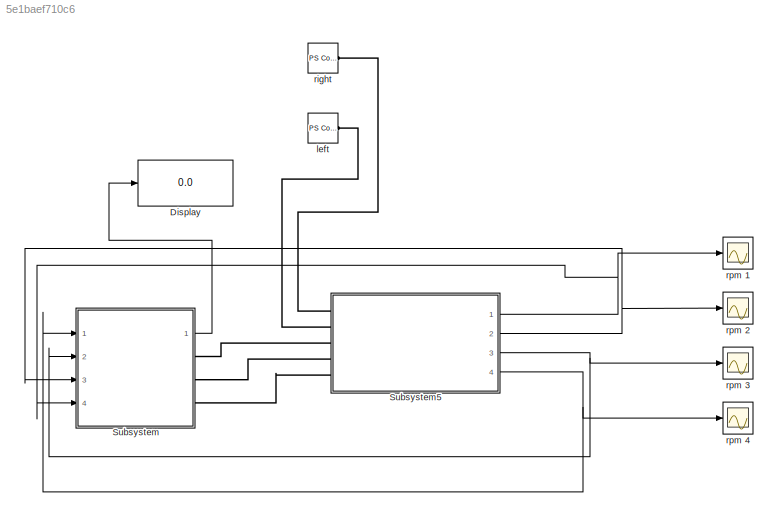
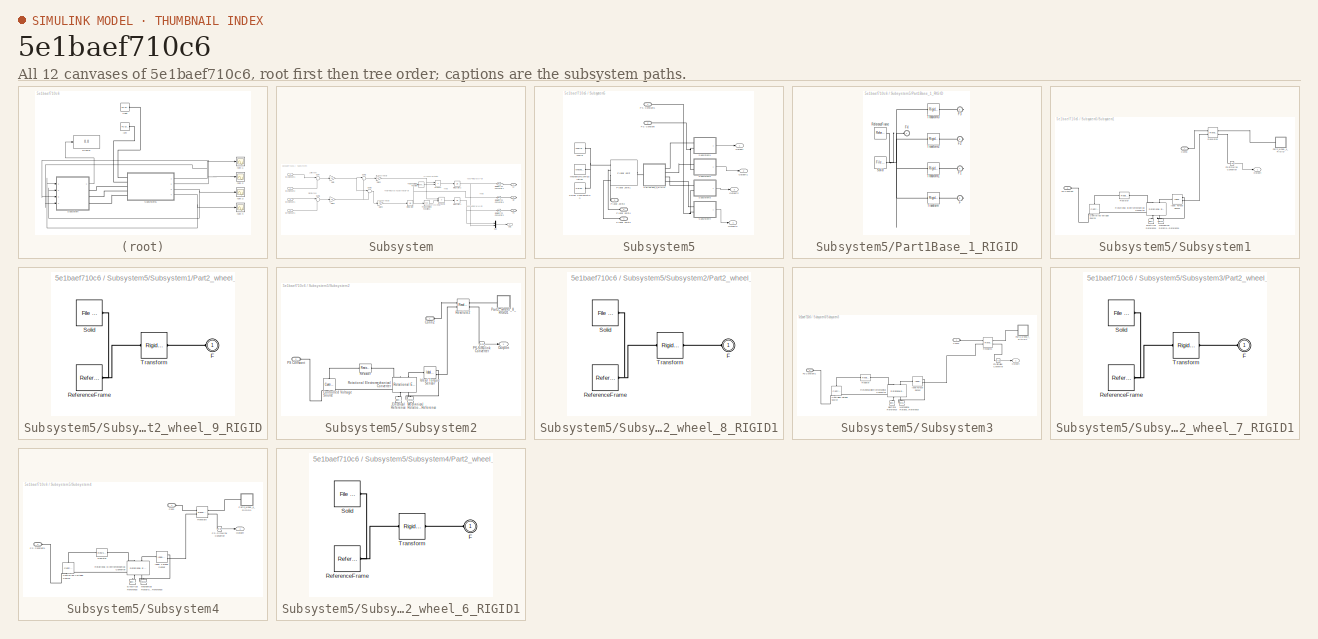
[diagram: thumbnail index - all 12 canvases of the model, root first then tree order]
MODEL slx_5e1baef710c6
KIND model
CONFIG AbsTol = auto
CONFIG EnableMultiTasking = off
CONFIG FixedStep = auto
CONFIG MaxStep = auto
CONFIG MinStep = auto
CONFIG RelTol = 1e-3
CONFIG SampleTimeConstraint = Unconstrained
CONFIG Solver = VariableStepAuto
CONFIG SolverName = VariableStepAuto
CONFIG StartTime = 0.0
CONFIG StopTime = 10.0
WORKSPACE source: external: MATLAB File  (data not in archive)
BLOCK [Display] Display
  Decimation = 1
  Ports = [1]
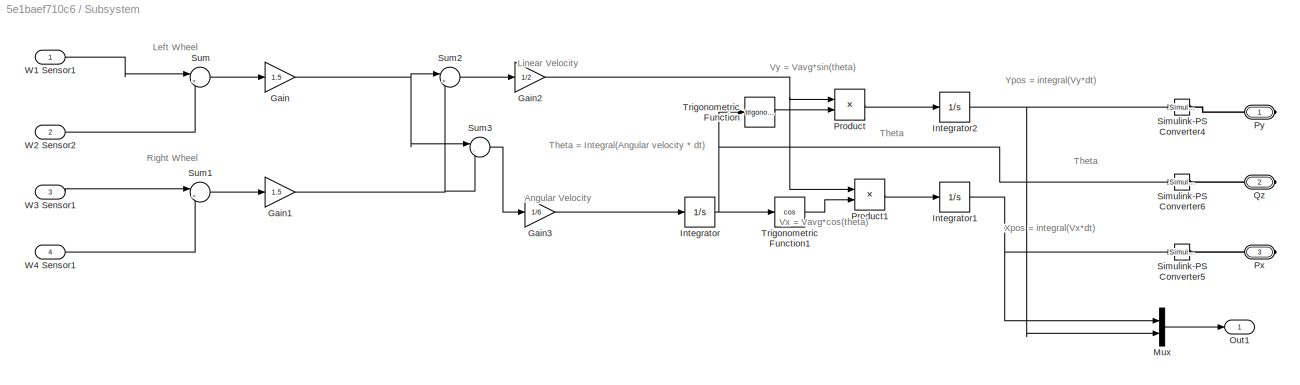
BLOCK [SubSystem] Subsystem
  Ports = [4, 1, 0, 0, 0, 0, 3]
  RequestExecContextInheritance = off
BLOCK [Gain] Subsystem/Gain
  Gain = 1.5
BLOCK [Gain] Subsystem/Gain1
  Gain = 1.5
BLOCK [Gain] Subsystem/Gain2
  Gain = 1/2
BLOCK [Gain] Subsystem/Gain3
  Gain = 1/6
BLOCK [Integrator] Subsystem/Integrator
  Ports = [1, 1]
BLOCK [Integrator] Subsystem/Integrator1
  Ports = [1, 1]
BLOCK [Integrator] Subsystem/Integrator2
  Ports = [1, 1]
BLOCK [Mux] Subsystem/Mux
  DisplayOption = bar
  Inputs = 2
  Ports = [2, 1]
BLOCK [Outport] Subsystem/Out1
BLOCK [Product] Subsystem/Product
  Ports = [2, 1]
BLOCK [Product] Subsystem/Product1
  Ports = [2, 1]
BLOCK [PMIOPort] Subsystem/Px
  Port = 3
  Side = Right
BLOCK [PMIOPort] Subsystem/Py
  Side = Right
BLOCK [PMIOPort] Subsystem/Qz
  Port = 2
  Side = Right
BLOCK [Reference] Subsystem/Simulink-PS Converter4  REF=nesl_utility/Simulink-PS
Converter
  Ports = [1, 0, 0, 0, 0, 0, 1]
  SourceBlock = nesl_utility/Simulink-PS\nConverter
  SourceProductBaseCode = SS
  SourceType = Simulink-PS\nConverter
BLOCK [Reference] Subsystem/Simulink-PS Converter5  REF=nesl_utility/Simulink-PS
Converter
  Ports = [1, 0, 0, 0, 0, 0, 1]
  SourceBlock = nesl_utility/Simulink-PS\nConverter
  SourceProductBaseCode = SS
  SourceType = Simulink-PS\nConverter
BLOCK [Reference] Subsystem/Simulink-PS Converter6  REF=nesl_utility/Simulink-PS
Converter
  Ports = [1, 0, 0, 0, 0, 0, 1]
  SourceBlock = nesl_utility/Simulink-PS\nConverter
  SourceProductBaseCode = SS
  SourceType = Simulink-PS\nConverter
BLOCK [Sum] Subsystem/Sum
  Inputs = |++
  Ports = [2, 1]
BLOCK [Sum] Subsystem/Sum1
  Inputs = |++
  Ports = [2, 1]
BLOCK [Sum] Subsystem/Sum2
  Inputs = |++
  Ports = [2, 1]
BLOCK [Sum] Subsystem/Sum3
  Inputs = |-+
  Ports = [2, 1]
BLOCK [Trigonometry] Subsystem/Trigonometric Function
  Ports = [1, 1]
BLOCK [Trigonometry] Subsystem/Trigonometric Function1
  Operator = cos
  Ports = [1, 1]
BLOCK [Inport] Subsystem/W1 Sensor1
BLOCK [Inport] Subsystem/W2 Sensor2
  Port = 2
BLOCK [Inport] Subsystem/W3 Sensor1
  Port = 3
BLOCK [Inport] Subsystem/W4 Sensor1
  Port = 4
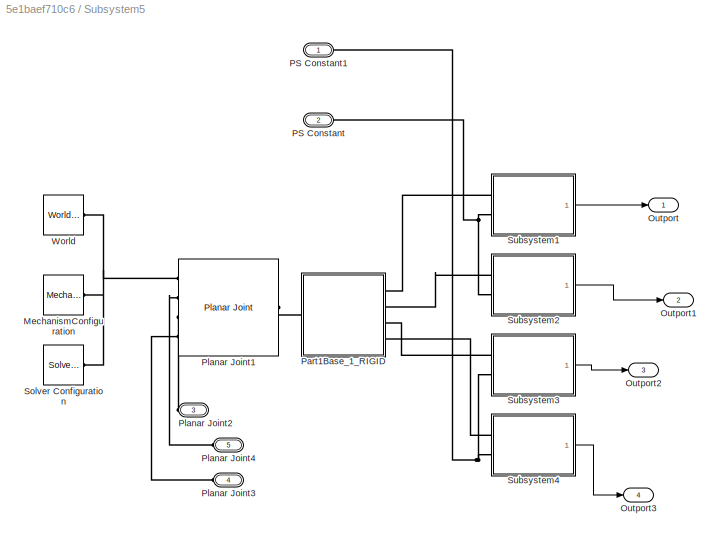
BLOCK [SubSystem] Subsystem5
  Ports = [0, 4, 0, 0, 0, 5]
  RequestExecContextInheritance = off
BLOCK [Reference] Subsystem5/MechanismConfiguration  REF=sm_lib/Utilities/Mechanism
Configuration
  Ports = [0, 0, 0, 0, 0, 0, 1]
  SourceBlock = sm_lib/Utilities/Mechanism\nConfiguration
  SourceProductBaseCode = MS
  SourceType = Mechanism\nConfiguration
BLOCK [Outport] Subsystem5/Outport
BLOCK [Outport] Subsystem5/Outport1
  Port = 2
BLOCK [Outport] Subsystem5/Outport2
  Port = 3
BLOCK [Outport] Subsystem5/Outport3
  Port = 4
BLOCK [PMIOPort] Subsystem5/PS Constant
  Port = 2
  Side = Left
BLOCK [PMIOPort] Subsystem5/PS Constant1
  Side = Left
BLOCK [SubSystem] Subsystem5/Part1Base_1_RIGID
  Ports = [0, 0, 0, 0, 0, 1, 4]
  RequestExecContextInheritance = off
BLOCK [PMIOPort] Subsystem5/Part1Base_1_RIGID/F
  Port = 5
  Side = Right
BLOCK [PMIOPort] Subsystem5/Part1Base_1_RIGID/F1
  Port = 4
  Side = Right
BLOCK [PMIOPort] Subsystem5/Part1Base_1_RIGID/F2
  Port = 3
  Side = Right
BLOCK [PMIOPort] Subsystem5/Part1Base_1_RIGID/F3
  Port = 2
  Side = Right
BLOCK [PMIOPort] Subsystem5/Part1Base_1_RIGID/F4
  Side = Left
BLOCK [Reference] Subsystem5/Part1Base_1_RIGID/ReferenceFrame  REF=sm_lib/Frames and
Transforms/Reference
Frame
  Ports = [0, 0, 0, 0, 0, 0, 1]
  SourceBlock = sm_lib/Frames and\nTransforms/Reference\nFrame
  SourceProductBaseCode = MS
  SourceType = Reference\nFrame
BLOCK [Reference] Subsystem5/Part1Base_1_RIGID/Solid  REF=sm_lib/Body Elements/File Solid
  Ports = [0, 0, 0, 0, 0, 0, 1]
  SourceBlock = sm_lib/Body Elements/File Solid
  SourceProductBaseCode = MS
  SourceType = File Solid
BLOCK [Reference] Subsystem5/Part1Base_1_RIGID/Transform  REF=sm_lib/Frames and
Transforms/Rigid
Transform
  Ports = [0, 0, 0, 0, 0, 1, 1]
  SourceBlock = sm_lib/Frames and\nTransforms/Rigid\nTransform
  SourceProductBaseCode = MS
  SourceType = Rigid\nTransform
BLOCK [Reference] Subsystem5/Part1Base_1_RIGID/Transform1  REF=sm_lib/Frames and
Transforms/Rigid
Transform
  Ports = [0, 0, 0, 0, 0, 1, 1]
  SourceBlock = sm_lib/Frames and\nTransforms/Rigid\nTransform
  SourceProductBaseCode = MS
  SourceType = Rigid\nTransform
BLOCK [Reference] Subsystem5/Part1Base_1_RIGID/Transform2  REF=sm_lib/Frames and
Transforms/Rigid
Transform
  Ports = [0, 0, 0, 0, 0, 1, 1]
  SourceBlock = sm_lib/Frames and\nTransforms/Rigid\nTransform
  SourceProductBaseCode = MS
  SourceType = Rigid\nTransform
BLOCK [Reference] Subsystem5/Part1Base_1_RIGID/Transform3  REF=sm_lib/Frames and
Transforms/Rigid
Transform
  Ports = [0, 0, 0, 0, 0, 1, 1]
  SourceBlock = sm_lib/Frames and\nTransforms/Rigid\nTransform
  SourceProductBaseCode = MS
  SourceType = Rigid\nTransform
BLOCK [Reference] Subsystem5/Planar Joint1  REF=sm_lib/Joints/Planar Joint
  Ports = [0, 0, 0, 0, 0, 4, 1]
  SourceBlock = sm_lib/Joints/Planar Joint
  SourceProductBaseCode = MS
  SourceType = Planar Joint
BLOCK [PMIOPort] Subsystem5/Planar Joint2
  Port = 3
  Side = Left
BLOCK [PMIOPort] Subsystem5/Planar Joint3
  Port = 4
  Side = Left
BLOCK [PMIOPort] Subsystem5/Planar Joint4
  Port = 5
  Side = Left
BLOCK [Reference] Subsystem5/Solver Configuration  REF=nesl_utility/Solver
Configuration
  Ports = [0, 0, 0, 0, 0, 0, 1]
  SourceBlock = nesl_utility/Solver\nConfiguration
  SourceProductBaseCode = SS
  SourceType = Solver\nConfiguration
BLOCK [SubSystem] Subsystem5/Subsystem1
  Ports = [0, 1, 0, 0, 0, 2]
  RequestExecContextInheritance = off
BLOCK [PMIOPort] Subsystem5/Subsystem1/Conn3
  Side = Left
BLOCK [Reference] Subsystem5/Subsystem1/Controlled Voltage Source  REF=fl_lib/Electrical/Electrical Sources/Controlled Voltage
Source
  NameLocation = right
  Ports = [0, 0, 0, 0, 0, 1, 2]
  SourceBlock = fl_lib/Electrical/Electrical Sources/Controlled Voltage\nSource
  SourceProductBaseCode = SS
  SourceType = Controlled Voltage\nSource
BLOCK [Reference] Subsystem5/Subsystem1/Electrical Reference  REF=fl_lib/Electrical/Electrical Elements/Electrical Reference
  NameLocation = right
  Ports = [0, 0, 0, 0, 0, 1]
  SourceBlock = fl_lib/Electrical/Electrical Elements/Electrical Reference
  SourceProductBaseCode = SS
  SourceType = Electrical Reference
BLOCK [Reference] Subsystem5/Subsystem1/Ideal Torque Sensor  REF=fl_lib/Mechanical/Mechanical Sensors/Ideal Torque Sensor
  Ports = [0, 0, 0, 0, 0, 1, 2]
  SourceBlock = fl_lib/Mechanical/Mechanical Sensors/Ideal Torque Sensor
  SourceProductBaseCode = SS
  SourceType = Ideal Torque Sensor
BLOCK [Reference] Subsystem5/Subsystem1/Mechanical Rotational Reference  REF=fl_lib/Mechanical/Rotational Elements/Mechanical
Rotational Reference
  NameLocation = right
  Ports = [0, 0, 0, 0, 0, 1]
  SourceBlock = fl_lib/Mechanical/Rotational Elements/Mechanical\nRotational Reference
  SourceProductBaseCode = SS
  SourceType = Mechanical\nRotational Reference
BLOCK [Outport] Subsystem5/Subsystem1/Outport
BLOCK [PMIOPort] Subsystem5/Subsystem1/PS Constant
  Port = 2
  Side = Left
BLOCK [Reference] Subsystem5/Subsystem1/PS-Simulink Converter  REF=nesl_utility/PS-Simulink
Converter
  Ports = [0, 1, 0, 0, 0, 1]
  SourceBlock = nesl_utility/PS-Simulink\nConverter
  SourceProductBaseCode = SS
  SourceType = PS-Simulink\nConverter
BLOCK [SubSystem] Subsystem5/Subsystem1/Part2_wheel_9_RIGID
  Ports = [0, 0, 0, 0, 0, 1]
  RequestExecContextInheritance = off
BLOCK [PMIOPort] Subsystem5/Subsystem1/Part2_wheel_9_RIGID/F
  Side = Left
BLOCK [Reference] Subsystem5/Subsystem1/Part2_wheel_9_RIGID/ReferenceFrame  REF=sm_lib/Frames and
Transforms/Reference
Frame
  Ports = [0, 0, 0, 0, 0, 0, 1]
  SourceBlock = sm_lib/Frames and\nTransforms/Reference\nFrame
  SourceProductBaseCode = MS
  SourceType = Reference\nFrame
BLOCK [Reference] Subsystem5/Subsystem1/Part2_wheel_9_RIGID/Solid  REF=sm_lib/Body Elements/File Solid
  Ports = [0, 0, 0, 0, 0, 0, 1]
  SourceBlock = sm_lib/Body Elements/File Solid
  SourceProductBaseCode = MS
  SourceType = File Solid
BLOCK [Reference] Subsystem5/Subsystem1/Part2_wheel_9_RIGID/Transform  REF=sm_lib/Frames and
Transforms/Rigid
Transform
  Ports = [0, 0, 0, 0, 0, 1, 1]
  SourceBlock = sm_lib/Frames and\nTransforms/Rigid\nTransform
  SourceProductBaseCode = MS
  SourceType = Rigid\nTransform
BLOCK [Reference] Subsystem5/Subsystem1/Resistor  REF=fl_lib/Electrical/Electrical Elements/Resistor
  Ports = [0, 0, 0, 0, 0, 1, 1]
  SourceBlock = fl_lib/Electrical/Electrical Elements/Resistor
  SourceProductBaseCode = SS
  SourceType = Resistor
BLOCK [Reference] Subsystem5/Subsystem1/Revolute3  REF=sm_lib/Joints/Revolute Joint
  Ports = [0, 0, 0, 0, 0, 2, 2]
  SourceBlock = sm_lib/Joints/Revolute Joint
  SourceProductBaseCode = MS
  SourceType = Revolute Joint
BLOCK [Reference] Subsystem5/Subsystem1/Rotational Electromechanical Converter  REF=fl_lib/Electrical/Electrical Elements/Rotational
Electromechanical
Converter
  NameLocation = right
  Ports = [0, 0, 0, 0, 0, 2, 2]
  SourceBlock = fl_lib/Electrical/Electrical Elements/Rotational\nElectromechanical\nConverter
  SourceProductBaseCode = SS
  SourceType = Rotational\nElectromechanical\nConverter
BLOCK [SubSystem] Subsystem5/Subsystem2
  Ports = [0, 1, 0, 0, 0, 2]
  RequestExecContextInheritance = off
BLOCK [PMIOPort] Subsystem5/Subsystem2/Conn2
  Side = Left
BLOCK [Reference] Subsystem5/Subsystem2/Controlled Voltage Source  REF=fl_lib/Electrical/Electrical Sources/Controlled Voltage
Source
  NameLocation = right
  Ports = [0, 0, 0, 0, 0, 1, 2]
  SourceBlock = fl_lib/Electrical/Electrical Sources/Controlled Voltage\nSource
  SourceProductBaseCode = SS
  SourceType = Controlled Voltage\nSource
BLOCK [Reference] Subsystem5/Subsystem2/Electrical Reference  REF=fl_lib/Electrical/Electrical Elements/Electrical Reference
  NameLocation = right
  Ports = [0, 0, 0, 0, 0, 1]
  SourceBlock = fl_lib/Electrical/Electrical Elements/Electrical Reference
  SourceProductBaseCode = SS
  SourceType = Electrical Reference
BLOCK [Reference] Subsystem5/Subsystem2/Ideal Torque Sensor  REF=fl_lib/Mechanical/Mechanical Sensors/Ideal Torque Sensor
  Ports = [0, 0, 0, 0, 0, 1, 2]
  SourceBlock = fl_lib/Mechanical/Mechanical Sensors/Ideal Torque Sensor
  SourceProductBaseCode = SS
  SourceType = Ideal Torque Sensor
BLOCK [Reference] Subsystem5/Subsystem2/Mechanical Rotational Reference  REF=fl_lib/Mechanical/Rotational Elements/Mechanical
Rotational Reference
  NameLocation = right
  Ports = [0, 0, 0, 0, 0, 1]
  SourceBlock = fl_lib/Mechanical/Rotational Elements/Mechanical\nRotational Reference
  SourceProductBaseCode = SS
  SourceType = Mechanical\nRotational Reference
BLOCK [Outport] Subsystem5/Subsystem2/Outport
BLOCK [PMIOPort] Subsystem5/Subsystem2/PS Constant
  Port = 2
  Side = Left
BLOCK [Reference] Subsystem5/Subsystem2/PS-Simulink Converter  REF=nesl_utility/PS-Simulink
Converter
  Ports = [0, 1, 0, 0, 0, 1]
  SourceBlock = nesl_utility/PS-Simulink\nConverter
  SourceProductBaseCode = SS
  SourceType = PS-Simulink\nConverter
BLOCK [SubSystem] Subsystem5/Subsystem2/Part2_wheel_8_RIGID1
  Ports = [0, 0, 0, 0, 0, 1]
  RequestExecContextInheritance = off
BLOCK [PMIOPort] Subsystem5/Subsystem2/Part2_wheel_8_RIGID1/F
  Side = Left
BLOCK [Reference] Subsystem5/Subsystem2/Part2_wheel_8_RIGID1/ReferenceFrame  REF=sm_lib/Frames and
Transforms/Reference
Frame
  Ports = [0, 0, 0, 0, 0, 0, 1]
  SourceBlock = sm_lib/Frames and\nTransforms/Reference\nFrame
  SourceProductBaseCode = MS
  SourceType = Reference\nFrame
BLOCK [Reference] Subsystem5/Subsystem2/Part2_wheel_8_RIGID1/Solid  REF=sm_lib/Body Elements/File Solid
  Ports = [0, 0, 0, 0, 0, 0, 1]
  SourceBlock = sm_lib/Body Elements/File Solid
  SourceProductBaseCode = MS
  SourceType = File Solid
BLOCK [Reference] Subsystem5/Subsystem2/Part2_wheel_8_RIGID1/Transform  REF=sm_lib/Frames and
Transforms/Rigid
Transform
  Ports = [0, 0, 0, 0, 0, 1, 1]
  SourceBlock = sm_lib/Frames and\nTransforms/Rigid\nTransform
  SourceProductBaseCode = MS
  SourceType = Rigid\nTransform
BLOCK [Reference] Subsystem5/Subsystem2/Resistor  REF=fl_lib/Electrical/Electrical Elements/Resistor
  Ports = [0, 0, 0, 0, 0, 1, 1]
  SourceBlock = fl_lib/Electrical/Electrical Elements/Resistor
  SourceProductBaseCode = SS
  SourceType = Resistor
BLOCK [Reference] Subsystem5/Subsystem2/Revolute2  REF=sm_lib/Joints/Revolute Joint
  Ports = [0, 0, 0, 0, 0, 2, 2]
  SourceBlock = sm_lib/Joints/Revolute Joint
  SourceProductBaseCode = MS
  SourceType = Revolute Joint
BLOCK [Reference] Subsystem5/Subsystem2/Rotational Electromechanical Converter  REF=fl_lib/Electrical/Electrical Elements/Rotational
Electromechanical
Converter
  NameLocation = right
  Ports = [0, 0, 0, 0, 0, 2, 2]
  SourceBlock = fl_lib/Electrical/Electrical Elements/Rotational\nElectromechanical\nConverter
  SourceProductBaseCode = SS
  SourceType = Rotational\nElectromechanical\nConverter
BLOCK [SubSystem] Subsystem5/Subsystem3
  Ports = [0, 1, 0, 0, 0, 2]
  RequestExecContextInheritance = off
BLOCK [PMIOPort] Subsystem5/Subsystem3/Conn1
  Side = Left
BLOCK [Reference] Subsystem5/Subsystem3/Controlled Voltage Source  REF=fl_lib/Electrical/Electrical Sources/Controlled Voltage
Source
  NameLocation = right
  Ports = [0, 0, 0, 0, 0, 1, 2]
  SourceBlock = fl_lib/Electrical/Electrical Sources/Controlled Voltage\nSource
  SourceProductBaseCode = SS
  SourceType = Controlled Voltage\nSource
BLOCK [Reference] Subsystem5/Subsystem3/Electrical Reference  REF=fl_lib/Electrical/Electrical Elements/Electrical Reference
  NameLocation = right
  Ports = [0, 0, 0, 0, 0, 1]
  SourceBlock = fl_lib/Electrical/Electrical Elements/Electrical Reference
  SourceProductBaseCode = SS
  SourceType = Electrical Reference
BLOCK [Reference] Subsystem5/Subsystem3/Ideal Torque Sensor  REF=fl_lib/Mechanical/Mechanical Sensors/Ideal Torque Sensor
  Ports = [0, 0, 0, 0, 0, 1, 2]
  SourceBlock = fl_lib/Mechanical/Mechanical Sensors/Ideal Torque Sensor
  SourceProductBaseCode = SS
  SourceType = Ideal Torque Sensor
BLOCK [Reference] Subsystem5/Subsystem3/Mechanical Rotational Reference  REF=fl_lib/Mechanical/Rotational Elements/Mechanical
Rotational Reference
  NameLocation = right
  Ports = [0, 0, 0, 0, 0, 1]
  SourceBlock = fl_lib/Mechanical/Rotational Elements/Mechanical\nRotational Reference
  SourceProductBaseCode = SS
  SourceType = Mechanical\nRotational Reference
BLOCK [Outport] Subsystem5/Subsystem3/Outport
BLOCK [PMIOPort] Subsystem5/Subsystem3/PS Constant1
  Port = 2
  Side = Left
BLOCK [Reference] Subsystem5/Subsystem3/PS-Simulink Converter  REF=nesl_utility/PS-Simulink
Converter
  Ports = [0, 1, 0, 0, 0, 1]
  SourceBlock = nesl_utility/PS-Simulink\nConverter
  SourceProductBaseCode = SS
  SourceType = PS-Simulink\nConverter
BLOCK [SubSystem] Subsystem5/Subsystem3/Part2_wheel_7_RIGID1
  Ports = [0, 0, 0, 0, 0, 1]
  RequestExecContextInheritance = off
BLOCK [PMIOPort] Subsystem5/Subsystem3/Part2_wheel_7_RIGID1/F
  Side = Left
BLOCK [Reference] Subsystem5/Subsystem3/Part2_wheel_7_RIGID1/ReferenceFrame  REF=sm_lib/Frames and
Transforms/Reference
Frame
  Ports = [0, 0, 0, 0, 0, 0, 1]
  SourceBlock = sm_lib/Frames and\nTransforms/Reference\nFrame
  SourceProductBaseCode = MS
  SourceType = Reference\nFrame
BLOCK [Reference] Subsystem5/Subsystem3/Part2_wheel_7_RIGID1/Solid  REF=sm_lib/Body Elements/File Solid
  Ports = [0, 0, 0, 0, 0, 0, 1]
  SourceBlock = sm_lib/Body Elements/File Solid
  SourceProductBaseCode = MS
  SourceType = File Solid
BLOCK [Reference] Subsystem5/Subsystem3/Part2_wheel_7_RIGID1/Transform  REF=sm_lib/Frames and
Transforms/Rigid
Transform
  Ports = [0, 0, 0, 0, 0, 1, 1]
  SourceBlock = sm_lib/Frames and\nTransforms/Rigid\nTransform
  SourceProductBaseCode = MS
  SourceType = Rigid\nTransform
BLOCK [Reference] Subsystem5/Subsystem3/Resistor  REF=fl_lib/Electrical/Electrical Elements/Resistor
  Ports = [0, 0, 0, 0, 0, 1, 1]
  SourceBlock = fl_lib/Electrical/Electrical Elements/Resistor
  SourceProductBaseCode = SS
  SourceType = Resistor
BLOCK [Reference] Subsystem5/Subsystem3/Revolute1  REF=sm_lib/Joints/Revolute Joint
  Ports = [0, 0, 0, 0, 0, 2, 2]
  SourceBlock = sm_lib/Joints/Revolute Joint
  SourceProductBaseCode = MS
  SourceType = Revolute Joint
BLOCK [Reference] Subsystem5/Subsystem3/Rotational Electromechanical Converter  REF=fl_lib/Electrical/Electrical Elements/Rotational
Electromechanical
Converter
  NameLocation = right
  Ports = [0, 0, 0, 0, 0, 2, 2]
  SourceBlock = fl_lib/Electrical/Electrical Elements/Rotational\nElectromechanical\nConverter
  SourceProductBaseCode = SS
  SourceType = Rotational\nElectromechanical\nConverter
BLOCK [SubSystem] Subsystem5/Subsystem4
  Ports = [0, 1, 0, 0, 0, 2]
  RequestExecContextInheritance = off
BLOCK [PMIOPort] Subsystem5/Subsystem4/Conn
  Side = Left
BLOCK [Reference] Subsystem5/Subsystem4/Controlled Voltage Source  REF=fl_lib/Electrical/Electrical Sources/Controlled Voltage
Source
  NameLocation = right
  Ports = [0, 0, 0, 0, 0, 1, 2]
  SourceBlock = fl_lib/Electrical/Electrical Sources/Controlled Voltage\nSource
  SourceProductBaseCode = SS
  SourceType = Controlled Voltage\nSource
BLOCK [Reference] Subsystem5/Subsystem4/Electrical Reference  REF=fl_lib/Electrical/Electrical Elements/Electrical Reference
  NameLocation = right
  Ports = [0, 0, 0, 0, 0, 1]
  SourceBlock = fl_lib/Electrical/Electrical Elements/Electrical Reference
  SourceProductBaseCode = SS
  SourceType = Electrical Reference
BLOCK [Reference] Subsystem5/Subsystem4/Ideal Torque Sensor  REF=fl_lib/Mechanical/Mechanical Sensors/Ideal Torque Sensor
  Ports = [0, 0, 0, 0, 0, 1, 2]
  SourceBlock = fl_lib/Mechanical/Mechanical Sensors/Ideal Torque Sensor
  SourceProductBaseCode = SS
  SourceType = Ideal Torque Sensor
BLOCK [Reference] Subsystem5/Subsystem4/Mechanical Rotational Reference  REF=fl_lib/Mechanical/Rotational Elements/Mechanical
Rotational Reference
  NameLocation = right
  Ports = [0, 0, 0, 0, 0, 1]
  SourceBlock = fl_lib/Mechanical/Rotational Elements/Mechanical\nRotational Reference
  SourceProductBaseCode = SS
  SourceType = Mechanical\nRotational Reference
BLOCK [Outport] Subsystem5/Subsystem4/Outport
BLOCK [PMIOPort] Subsystem5/Subsystem4/PS Constant1
  Port = 2
  Side = Left
BLOCK [Reference] Subsystem5/Subsystem4/PS-Simulink Converter  REF=nesl_utility/PS-Simulink
Converter
  Ports = [0, 1, 0, 0, 0, 1]
  SourceBlock = nesl_utility/PS-Simulink\nConverter
  SourceProductBaseCode = SS
  SourceType = PS-Simulink\nConverter
BLOCK [SubSystem] Subsystem5/Subsystem4/Part2_wheel_6_RIGID1
  Ports = [0, 0, 0, 0, 0, 1]
  RequestExecContextInheritance = off
BLOCK [PMIOPort] Subsystem5/Subsystem4/Part2_wheel_6_RIGID1/F
  Side = Left
BLOCK [Reference] Subsystem5/Subsystem4/Part2_wheel_6_RIGID1/ReferenceFrame  REF=sm_lib/Frames and
Transforms/Reference
Frame
  Ports = [0, 0, 0, 0, 0, 0, 1]
  SourceBlock = sm_lib/Frames and\nTransforms/Reference\nFrame
  SourceProductBaseCode = MS
  SourceType = Reference\nFrame
BLOCK [Reference] Subsystem5/Subsystem4/Part2_wheel_6_RIGID1/Solid  REF=sm_lib/Body Elements/File Solid
  Ports = [0, 0, 0, 0, 0, 0, 1]
  SourceBlock = sm_lib/Body Elements/File Solid
  SourceProductBaseCode = MS
  SourceType = File Solid
BLOCK [Reference] Subsystem5/Subsystem4/Part2_wheel_6_RIGID1/Transform  REF=sm_lib/Frames and
Transforms/Rigid
Transform
  Ports = [0, 0, 0, 0, 0, 1, 1]
  SourceBlock = sm_lib/Frames and\nTransforms/Rigid\nTransform
  SourceProductBaseCode = MS
  SourceType = Rigid\nTransform
BLOCK [Reference] Subsystem5/Subsystem4/Resistor  REF=fl_lib/Electrical/Electrical Elements/Resistor
  Ports = [0, 0, 0, 0, 0, 1, 1]
  SourceBlock = fl_lib/Electrical/Electrical Elements/Resistor
  SourceProductBaseCode = SS
  SourceType = Resistor
BLOCK [Reference] Subsystem5/Subsystem4/Revolute  REF=sm_lib/Joints/Revolute Joint
  Ports = [0, 0, 0, 0, 0, 2, 2]
  SourceBlock = sm_lib/Joints/Revolute Joint
  SourceProductBaseCode = MS
  SourceType = Revolute Joint
BLOCK [Reference] Subsystem5/Subsystem4/Rotational Electromechanical Converter  REF=fl_lib/Electrical/Electrical Elements/Rotational
Electromechanical
Converter
  NameLocation = right
  Ports = [0, 0, 0, 0, 0, 2, 2]
  SourceBlock = fl_lib/Electrical/Electrical Elements/Rotational\nElectromechanical\nConverter
  SourceProductBaseCode = SS
  SourceType = Rotational\nElectromechanical\nConverter
BLOCK [Reference] Subsystem5/World  REF=sm_lib/Frames and
Transforms/World Frame
  Ports = [0, 0, 0, 0, 0, 0, 1]
  SourceBlock = sm_lib/Frames and\nTransforms/World Frame
  SourceProductBaseCode = MS
  SourceType = World Frame
BLOCK [Reference] left  REF=fl_lib/Physical Signals/Sources/PS Constant
  Ports = [0, 0, 0, 0, 0, 0, 1]
  SourceBlock = fl_lib/Physical Signals/Sources/PS Constant
  SourceProductBaseCode = SS
  SourceType = PS Constant
BLOCK [Reference] right  REF=fl_lib/Physical Signals/Sources/PS Constant
  Ports = [0, 0, 0, 0, 0, 0, 1]
  SourceBlock = fl_lib/Physical Signals/Sources/PS Constant
  SourceProductBaseCode = SS
  SourceType = PS Constant
BLOCK [Scope] rpm 1
  Floating = off
  NumInputPorts = 1
  Ports = [1]
  ScopeSpecificationString = Simulink.scopes.TimeScopeBlockCfg('CurrentConfiguration', extmgr.ConfigurationSet(extmgr.Configuration('Core','General UI',true),extmgr.Configuration('Core','Source UI',true),extmgr.Configuration('Sources','WiredSimulink',true,'DataLoggingSaveFormat','Array','DataLoggingLimitDataPoints',true,'DataLoggingDecimation','1'),extmgr.Configuration('Visuals','Time Domain',true,'SerializedDisplays',{struct...<+3683ch>
BLOCK [Scope] rpm 2
  Floating = off
  NumInputPorts = 1
  Ports = [1]
  ScopeSpecificationString = Simulink.scopes.TimeScopeBlockCfg('CurrentConfiguration', extmgr.ConfigurationSet(extmgr.Configuration('Core','General UI',true),extmgr.Configuration('Core','Source UI',true),extmgr.Configuration('Sources','WiredSimulink',true,'DataLoggingVariableName','ScopeData1','DataLoggingSaveFormat','Array','DataLoggingLimitDataPoints',true,'DataLoggingDecimation','1'),extmgr.Configuration('Visuals','Time Do...<+1640ch>
BLOCK [Scope] rpm 3
  Floating = off
  NumInputPorts = 1
  Ports = [1]
  ScopeSpecificationString = Simulink.scopes.TimeScopeBlockCfg('CurrentConfiguration', extmgr.ConfigurationSet(extmgr.Configuration('Core','General UI',true),extmgr.Configuration('Core','Source UI',true),extmgr.Configuration('Sources','WiredSimulink',true,'DataLoggingVariableName','ScopeData2','DataLoggingSaveFormat','Array','DataLoggingLimitDataPoints',true,'DataLoggingDecimation','1'),extmgr.Configuration('Visuals','Time Do...<+868ch>
BLOCK [Scope] rpm 4
  Floating = off
  NumInputPorts = 1
  Ports = [1]
  ScopeSpecificationString = Simulink.scopes.TimeScopeBlockCfg('CurrentConfiguration', extmgr.ConfigurationSet(extmgr.Configuration('Core','General UI',true),extmgr.Configuration('Core','Source UI',true),extmgr.Configuration('Sources','WiredSimulink',true,'DataLoggingVariableName','ScopeData3','DataLoggingSaveFormat','Array','DataLoggingLimitDataPoints',true,'DataLoggingDecimation','1'),extmgr.Configuration('Visuals','Time Do...<+1745ch>
ANNOTATION Subsystem: Angular Velocity
ANNOTATION Subsystem: Left Wheel
ANNOTATION Subsystem: Linear Velocity
ANNOTATION Subsystem: Right Wheel
ANNOTATION Subsystem: Theta
ANNOTATION Subsystem: Theta = Integral(Angular velocity * dt)
ANNOTATION Subsystem: Vx = Vavg*cos(theta)
ANNOTATION Subsystem: Vy = Vavg*sin(theta)
ANNOTATION Subsystem: Xpos = integral(Vx*dt)
ANNOTATION Subsystem: Ypos = integral(Vy*dt)
NET Subsystem/Gain1:1 -> Subsystem/Sum2:2, Subsystem/Sum3:2
NET Subsystem/Gain2:1 -> Subsystem/Product1:1, Subsystem/Product:1
LINE Subsystem/Gain3:1 -> Subsystem/Integrator:1
NET Subsystem/Gain:1 -> Subsystem/Sum2:1, Subsystem/Sum3:1
NET Subsystem/Integrator1:1 -> Subsystem/Mux:1, Subsystem/Simulink-PS Converter5:1
NET Subsystem/Integrator2:1 -> Subsystem/Mux:2, Subsystem/Simulink-PS Converter4:1
NET Subsystem/Integrator:1 -> Subsystem/Simulink-PS Converter6:1, Subsystem/Trigonometric Function1:1, Subsystem/Trigonometric Function:1
LINE Subsystem/Mux:1 -> Subsystem/Out1:1
LINE Subsystem/Product1:1 -> Subsystem/Integrator1:1
LINE Subsystem/Product:1 -> Subsystem/Integrator2:1
LINE Subsystem/Sum1:1 -> Subsystem/Gain1:1
LINE Subsystem/Sum2:1 -> Subsystem/Gain2:1
LINE Subsystem/Sum3:1 -> Subsystem/Gain3:1
LINE Subsystem/Sum:1 -> Subsystem/Gain:1
LINE Subsystem/Trigonometric Function1:1 -> Subsystem/Product1:2
LINE Subsystem/Trigonometric Function:1 -> Subsystem/Product:2
LINE Subsystem/W1 Sensor1:1 -> Subsystem/Sum:1
LINE Subsystem/W2 Sensor2:1 -> Subsystem/Sum:2
LINE Subsystem/W3 Sensor1:1 -> Subsystem/Sum1:1
LINE Subsystem/W4 Sensor1:1 -> Subsystem/Sum1:2
LINE Subsystem5/Subsystem1/PS-Simulink Converter:1 -> Subsystem5/Subsystem1/Outport:1
LINE Subsystem5/Subsystem1:1 -> Subsystem5/Outport:1
LINE Subsystem5/Subsystem2/PS-Simulink Converter:1 -> Subsystem5/Subsystem2/Outport:1
LINE Subsystem5/Subsystem2:1 -> Subsystem5/Outport1:1
LINE Subsystem5/Subsystem3/PS-Simulink Converter:1 -> Subsystem5/Subsystem3/Outport:1
LINE Subsystem5/Subsystem3:1 -> Subsystem5/Outport2:1
LINE Subsystem5/Subsystem4/PS-Simulink Converter:1 -> Subsystem5/Subsystem4/Outport:1
LINE Subsystem5/Subsystem4:1 -> Subsystem5/Outport3:1
NET Subsystem5:1 -> Subsystem:4, rpm 1:1
NET Subsystem5:2 -> Subsystem:3, rpm 2:1
NET Subsystem5:3 -> Subsystem:2, rpm 3:1
NET Subsystem5:4 -> Subsystem:1, rpm 4:1
LINE Subsystem:1 -> Display:1
PLINE Subsystem/Px:RConn1 -- Subsystem/Simulink-PS Converter5:RConn1
PLINE Subsystem/Py:RConn1 -- Subsystem/Simulink-PS Converter4:RConn1
PLINE Subsystem/Qz:RConn1 -- Subsystem/Simulink-PS Converter6:RConn1
PNET net1: Subsystem5/MechanismConfiguration:RConn1 -- Subsystem5/Planar Joint1:LConn1 -- Subsystem5/Solver Configuration:RConn1 -- Subsystem5/World:RConn1
PNET net2: Subsystem5/PS Constant1:RConn1 -- Subsystem5/Subsystem3:LConn2 -- Subsystem5/Subsystem4:LConn2
PNET net3: Subsystem5/PS Constant:RConn1 -- Subsystem5/Subsystem1:LConn2 -- Subsystem5/Subsystem2:LConn2
PLINE Subsystem5/Part1Base_1_RIGID/F1:RConn1 -- Subsystem5/Part1Base_1_RIGID/Transform1:RConn1
PLINE Subsystem5/Part1Base_1_RIGID/F2:RConn1 -- Subsystem5/Part1Base_1_RIGID/Transform2:RConn1
PLINE Subsystem5/Part1Base_1_RIGID/F3:RConn1 -- Subsystem5/Part1Base_1_RIGID/Transform3:RConn1
PNET net4: Subsystem5/Part1Base_1_RIGID/F4:RConn1 -- Subsystem5/Part1Base_1_RIGID/ReferenceFrame:RConn1 -- Subsystem5/Part1Base_1_RIGID/Solid:RConn1 -- Subsystem5/Part1Base_1_RIGID/Transform1:LConn1 -- Subsystem5/Part1Base_1_RIGID/Transform2:LConn1 -- Subsystem5/Part1Base_1_RIGID/Transform3:LConn1 -- Subsystem5/Part1Base_1_RIGID/Transform:LConn1
PLINE Subsystem5/Part1Base_1_RIGID/F:RConn1 -- Subsystem5/Part1Base_1_RIGID/Transform:RConn1
PLINE Subsystem5/Part1Base_1_RIGID:LConn1 -- Subsystem5/Planar Joint1:RConn1
PLINE Subsystem5/Part1Base_1_RIGID:RConn1 -- Subsystem5/Subsystem1:LConn1
PLINE Subsystem5/Part1Base_1_RIGID:RConn2 -- Subsystem5/Subsystem2:LConn1
PLINE Subsystem5/Part1Base_1_RIGID:RConn3 -- Subsystem5/Subsystem3:LConn1
PLINE Subsystem5/Part1Base_1_RIGID:RConn4 -- Subsystem5/Subsystem4:LConn1
PLINE Subsystem5/Planar Joint1:LConn2 -- Subsystem5/Planar Joint4:RConn1
PLINE Subsystem5/Planar Joint1:LConn3 -- Subsystem5/Planar Joint2:RConn1
PLINE Subsystem5/Planar Joint1:LConn4 -- Subsystem5/Planar Joint3:RConn1
PLINE Subsystem5/Subsystem1/Conn3:RConn1 -- Subsystem5/Subsystem1/Revolute3:LConn1
PLINE Subsystem5/Subsystem1/Controlled Voltage Source:LConn1 -- Subsystem5/Subsystem1/Resistor:LConn1
PLINE Subsystem5/Subsystem1/Controlled Voltage Source:RConn1 -- Subsystem5/Subsystem1/PS Constant:RConn1
PNET net5: Subsystem5/Subsystem1/Controlled Voltage Source:RConn2 -- Subsystem5/Subsystem1/Electrical Reference:LConn1 -- Subsystem5/Subsystem1/Rotational Electromechanical Converter:RConn1
PLINE Subsystem5/Subsystem1/Ideal Torque Sensor:LConn1 -- Subsystem5/Subsystem1/Rotational Electromechanical Converter:LConn2
PNET net6: Subsystem5/Subsystem1/Ideal Torque Sensor:RConn1 -- Subsystem5/Subsystem1/Mechanical Rotational Reference:LConn1 -- Subsystem5/Subsystem1/Rotational Electromechanical Converter:RConn2
PLINE Subsystem5/Subsystem1/Ideal Torque Sensor:RConn2 -- Subsystem5/Subsystem1/Revolute3:LConn2
PLINE Subsystem5/Subsystem1/PS-Simulink Converter:LConn1 -- Subsystem5/Subsystem1/Revolute3:RConn2
PLINE Subsystem5/Subsystem1/Part2_wheel_9_RIGID/F:RConn1 -- Subsystem5/Subsystem1/Part2_wheel_9_RIGID/Transform:RConn1
PNET net7: Subsystem5/Subsystem1/Part2_wheel_9_RIGID/ReferenceFrame:RConn1 -- Subsystem5/Subsystem1/Part2_wheel_9_RIGID/Solid:RConn1 -- Subsystem5/Subsystem1/Part2_wheel_9_RIGID/Transform:LConn1
PLINE Subsystem5/Subsystem1/Part2_wheel_9_RIGID:LConn1 -- Subsystem5/Subsystem1/Revolute3:RConn1
PLINE Subsystem5/Subsystem1/Resistor:RConn1 -- Subsystem5/Subsystem1/Rotational Electromechanical Converter:LConn1
PLINE Subsystem5/Subsystem2/Conn2:RConn1 -- Subsystem5/Subsystem2/Revolute2:LConn1
PLINE Subsystem5/Subsystem2/Controlled Voltage Source:LConn1 -- Subsystem5/Subsystem2/Resistor:LConn1
PLINE Subsystem5/Subsystem2/Controlled Voltage Source:RConn1 -- Subsystem5/Subsystem2/PS Constant:RConn1
PNET net8: Subsystem5/Subsystem2/Controlled Voltage Source:RConn2 -- Subsystem5/Subsystem2/Electrical Reference:LConn1 -- Subsystem5/Subsystem2/Rotational Electromechanical Converter:RConn1
PLINE Subsystem5/Subsystem2/Ideal Torque Sensor:LConn1 -- Subsystem5/Subsystem2/Rotational Electromechanical Converter:LConn2
PNET net9: Subsystem5/Subsystem2/Ideal Torque Sensor:RConn1 -- Subsystem5/Subsystem2/Mechanical Rotational Reference:LConn1 -- Subsystem5/Subsystem2/Rotational Electromechanical Converter:RConn2
PLINE Subsystem5/Subsystem2/Ideal Torque Sensor:RConn2 -- Subsystem5/Subsystem2/Revolute2:LConn2
PLINE Subsystem5/Subsystem2/PS-Simulink Converter:LConn1 -- Subsystem5/Subsystem2/Revolute2:RConn2
PLINE Subsystem5/Subsystem2/Part2_wheel_8_RIGID1/F:RConn1 -- Subsystem5/Subsystem2/Part2_wheel_8_RIGID1/Transform:RConn1
PNET net10: Subsystem5/Subsystem2/Part2_wheel_8_RIGID1/ReferenceFrame:RConn1 -- Subsystem5/Subsystem2/Part2_wheel_8_RIGID1/Solid:RConn1 -- Subsystem5/Subsystem2/Part2_wheel_8_RIGID1/Transform:LConn1
PLINE Subsystem5/Subsystem2/Part2_wheel_8_RIGID1:LConn1 -- Subsystem5/Subsystem2/Revolute2:RConn1
PLINE Subsystem5/Subsystem2/Resistor:RConn1 -- Subsystem5/Subsystem2/Rotational Electromechanical Converter:LConn1
PLINE Subsystem5/Subsystem3/Conn1:RConn1 -- Subsystem5/Subsystem3/Revolute1:LConn1
PLINE Subsystem5/Subsystem3/Controlled Voltage Source:LConn1 -- Subsystem5/Subsystem3/Resistor:LConn1
PLINE Subsystem5/Subsystem3/Controlled Voltage Source:RConn1 -- Subsystem5/Subsystem3/PS Constant1:RConn1
PNET net11: Subsystem5/Subsystem3/Controlled Voltage Source:RConn2 -- Subsystem5/Subsystem3/Electrical Reference:LConn1 -- Subsystem5/Subsystem3/Rotational Electromechanical Converter:RConn1
PLINE Subsystem5/Subsystem3/Ideal Torque Sensor:LConn1 -- Subsystem5/Subsystem3/Rotational Electromechanical Converter:LConn2
PNET net12: Subsystem5/Subsystem3/Ideal Torque Sensor:RConn1 -- Subsystem5/Subsystem3/Mechanical Rotational Reference:LConn1 -- Subsystem5/Subsystem3/Rotational Electromechanical Converter:RConn2
PLINE Subsystem5/Subsystem3/Ideal Torque Sensor:RConn2 -- Subsystem5/Subsystem3/Revolute1:LConn2
PLINE Subsystem5/Subsystem3/PS-Simulink Converter:LConn1 -- Subsystem5/Subsystem3/Revolute1:RConn2
PLINE Subsystem5/Subsystem3/Part2_wheel_7_RIGID1/F:RConn1 -- Subsystem5/Subsystem3/Part2_wheel_7_RIGID1/Transform:RConn1
PNET net13: Subsystem5/Subsystem3/Part2_wheel_7_RIGID1/ReferenceFrame:RConn1 -- Subsystem5/Subsystem3/Part2_wheel_7_RIGID1/Solid:RConn1 -- Subsystem5/Subsystem3/Part2_wheel_7_RIGID1/Transform:LConn1
PLINE Subsystem5/Subsystem3/Part2_wheel_7_RIGID1:LConn1 -- Subsystem5/Subsystem3/Revolute1:RConn1
PLINE Subsystem5/Subsystem3/Resistor:RConn1 -- Subsystem5/Subsystem3/Rotational Electromechanical Converter:LConn1
PLINE Subsystem5/Subsystem4/Conn:RConn1 -- Subsystem5/Subsystem4/Revolute:LConn1
PLINE Subsystem5/Subsystem4/Controlled Voltage Source:LConn1 -- Subsystem5/Subsystem4/Resistor:LConn1
PLINE Subsystem5/Subsystem4/Controlled Voltage Source:RConn1 -- Subsystem5/Subsystem4/PS Constant1:RConn1
PNET net14: Subsystem5/Subsystem4/Controlled Voltage Source:RConn2 -- Subsystem5/Subsystem4/Electrical Reference:LConn1 -- Subsystem5/Subsystem4/Rotational Electromechanical Converter:RConn1
PLINE Subsystem5/Subsystem4/Ideal Torque Sensor:LConn1 -- Subsystem5/Subsystem4/Rotational Electromechanical Converter:LConn2
PNET net15: Subsystem5/Subsystem4/Ideal Torque Sensor:RConn1 -- Subsystem5/Subsystem4/Mechanical Rotational Reference:LConn1 -- Subsystem5/Subsystem4/Rotational Electromechanical Converter:RConn2
PLINE Subsystem5/Subsystem4/Ideal Torque Sensor:RConn2 -- Subsystem5/Subsystem4/Revolute:LConn2
PLINE Subsystem5/Subsystem4/PS-Simulink Converter:LConn1 -- Subsystem5/Subsystem4/Revolute:RConn2
PLINE Subsystem5/Subsystem4/Part2_wheel_6_RIGID1/F:RConn1 -- Subsystem5/Subsystem4/Part2_wheel_6_RIGID1/Transform:RConn1
PNET net16: Subsystem5/Subsystem4/Part2_wheel_6_RIGID1/ReferenceFrame:RConn1 -- Subsystem5/Subsystem4/Part2_wheel_6_RIGID1/Solid:RConn1 -- Subsystem5/Subsystem4/Part2_wheel_6_RIGID1/Transform:LConn1
PLINE Subsystem5/Subsystem4/Part2_wheel_6_RIGID1:LConn1 -- Subsystem5/Subsystem4/Revolute:RConn1
PLINE Subsystem5/Subsystem4/Resistor:RConn1 -- Subsystem5/Subsystem4/Rotational Electromechanical Converter:LConn1
PLINE Subsystem5:LConn1 -- right:RConn1
PLINE Subsystem5:LConn2 -- left:RConn1
PLINE Subsystem5:LConn3 -- Subsystem:RConn1
PLINE Subsystem5:LConn4 -- Subsystem:RConn2
PLINE Subsystem5:LConn5 -- Subsystem:RConn3
note: NET lines group one-source signal fan-out (src -> all destinations, sorted); 1:1 wires keep LINE; PNET lines group multi-terminal physical nets as a canonical sorted terminal list (undirected conserving connections); 2-terminal nets keep the pairwise PLINE form
